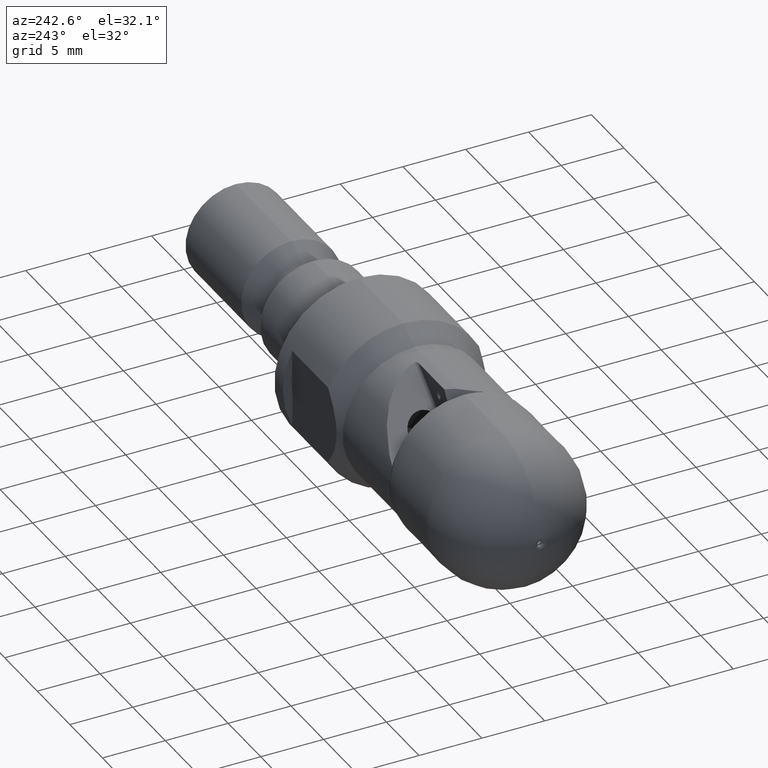
[diagram: clean part render]
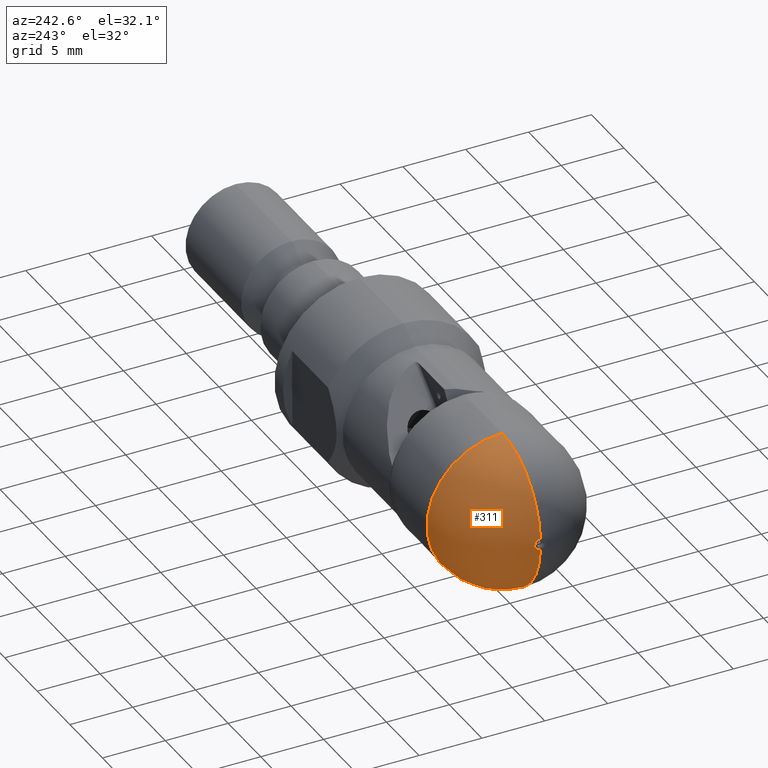
[diagram: same view with one face highlighted and labeled with its STEP entity id]
A machine part, auxiliary view. The second image highlights one B-rep face of the part: STEP entity #311.
In plain terms, the highlighted toroidal blend (fillet) surface has major radius 0.1621 mm and minor (blend) radius 5.8379 mm.
Its self-contained STEP definition (entity closure, byte-faithful):
#46 = EDGE_CURVE ( 'NONE', #2980, #1521, #489, .T. ) ;
#268 = CARTESIAN_POINT ( 'NONE',  ( 6.174987163152154679, 0.0000000000000000000, 0.0000000000000000000 ) ) ;
#291 = EDGE_CURVE ( 'NONE', #686, #2980, #3262, .T. ) ;
#308 = FACE_OUTER_BOUND ( 'NONE', #2453, .T. ) ;
#311 = ADVANCED_FACE ( 'NONE', ( #308 ), #2958, .T. ) ;
#429 = ORIENTED_EDGE ( 'NONE', *, *, #46, .T. ) ;
#489 = CIRCLE ( 'NONE', #3393, 5.837919721073645540 ) ;
#670 = ORIENTED_EDGE ( 'NONE', *, *, #2448, .F. ) ;
#686 = VERTEX_POINT ( 'NONE', #3875 ) ;
#885 = DIRECTION ( 'NONE',  ( -1.000000000000000000, -0.0000000000000000000, -0.0000000000000000000 ) ) ;
#900 = ORIENTED_EDGE ( 'NONE', *, *, #3527, .F. ) ;
#906 = CARTESIAN_POINT ( 'NONE',  ( 6.148744188651770415, 0.0000000000000000000, 0.0000000000000000000 ) ) ;
#1183 = DIRECTION ( 'NONE',  ( -1.000000000000000000, -0.0000000000000000000, -0.0000000000000000000 ) ) ;
#1192 = AXIS2_PLACEMENT_3D ( 'NONE', #906, #885, #2116 ) ;
#1420 = DIRECTION ( 'NONE',  ( 0.0000000000000000000, -1.000000000000000000, 0.0000000000000000000 ) ) ;
#1521 = VERTEX_POINT ( 'NONE', #3304 ) ;
#1565 = DIRECTION ( 'NONE',  ( -0.0000000000000000000, 1.000000000000000000, 1.224646799147353207E-16 ) ) ;
#1859 = DIRECTION ( 'NONE',  ( 0.0000000000000000000, 0.0000000000000000000, 1.000000000000000000 ) ) ;
#1867 = CARTESIAN_POINT ( 'NONE',  ( 6.174987163152154679, 7.347880794884120722E-16, -6.000000000000000888 ) ) ;
#2077 = DIRECTION ( 'NONE',  ( 0.0000000000000000000, 0.0000000000000000000, 1.000000000000000000 ) ) ;
#2083 = CIRCLE ( 'NONE', #2145, 0.4476167347736409452 ) ;
#2116 = DIRECTION ( 'NONE',  ( 0.0000000000000000000, 0.0000000000000000000, 1.000000000000000000 ) ) ;
#2145 = AXIS2_PLACEMENT_3D ( 'NONE', #3061, #1183, #1859 ) ;
#2196 = VERTEX_POINT ( 'NONE', #3688 ) ;
#2448 = EDGE_CURVE ( 'NONE', #2196, #1521, #2083, .T. ) ;
#2453 = EDGE_LOOP ( 'NONE', ( #2761, #429, #670, #900 ) ) ;
#2609 = CARTESIAN_POINT ( 'NONE',  ( 6.148744188651770415, 0.0000000000000000000, 0.1621392637379615309 ) ) ;
#2627 = DIRECTION ( 'NONE',  ( 0.0000000000000000000, 0.0000000000000000000, -1.000000000000000000 ) ) ;
#2751 = CARTESIAN_POINT ( 'NONE',  ( 6.148744188651770415, 1.985633303528031149E-17, -0.1621392637379615309 ) ) ;
#2761 = ORIENTED_EDGE ( 'NONE', *, *, #291, .T. ) ;
#2958 = TOROIDAL_SURFACE ( 'NONE', #1192, 0.1621392637379615309, 5.837919721073645540 ) ;
#2980 = VERTEX_POINT ( 'NONE', #1867 ) ;
#3061 = CARTESIAN_POINT ( 'NONE',  ( 0.3178086476573697139, 0.0000000000000000000, 0.0000000000000000000 ) ) ;
#3074 = DIRECTION ( 'NONE',  ( 0.0000000000000000000, -1.224646799147353207E-16, 1.000000000000000000 ) ) ;
#3231 = DIRECTION ( 'NONE',  ( -1.000000000000000000, -0.0000000000000000000, -0.0000000000000000000 ) ) ;
#3262 = CIRCLE ( 'NONE', #3788, 6.000000000000000888 ) ;
#3304 = CARTESIAN_POINT ( 'NONE',  ( 0.3178086476573697139, 5.481724014853264182E-17, -0.4476167347736387248 ) ) ;
#3393 = AXIS2_PLACEMENT_3D ( 'NONE', #2751, #1565, #3074 ) ;
#3527 = EDGE_CURVE ( 'NONE', #686, #2196, #3608, .T. ) ;
#3544 = AXIS2_PLACEMENT_3D ( 'NONE', #2609, #1420, #2627 ) ;
#3608 = CIRCLE ( 'NONE', #3544, 5.837919721073645540 ) ;
#3688 = CARTESIAN_POINT ( 'NONE',  ( 0.3178086476573697139, 0.0000000000000000000, 0.4476167347736387248 ) ) ;
#3788 = AXIS2_PLACEMENT_3D ( 'NONE', #268, #3231, #2077 ) ;
#3875 = CARTESIAN_POINT ( 'NONE',  ( 6.174987163152154679, 0.0000000000000000000, 6.000000000000000888 ) ) ;